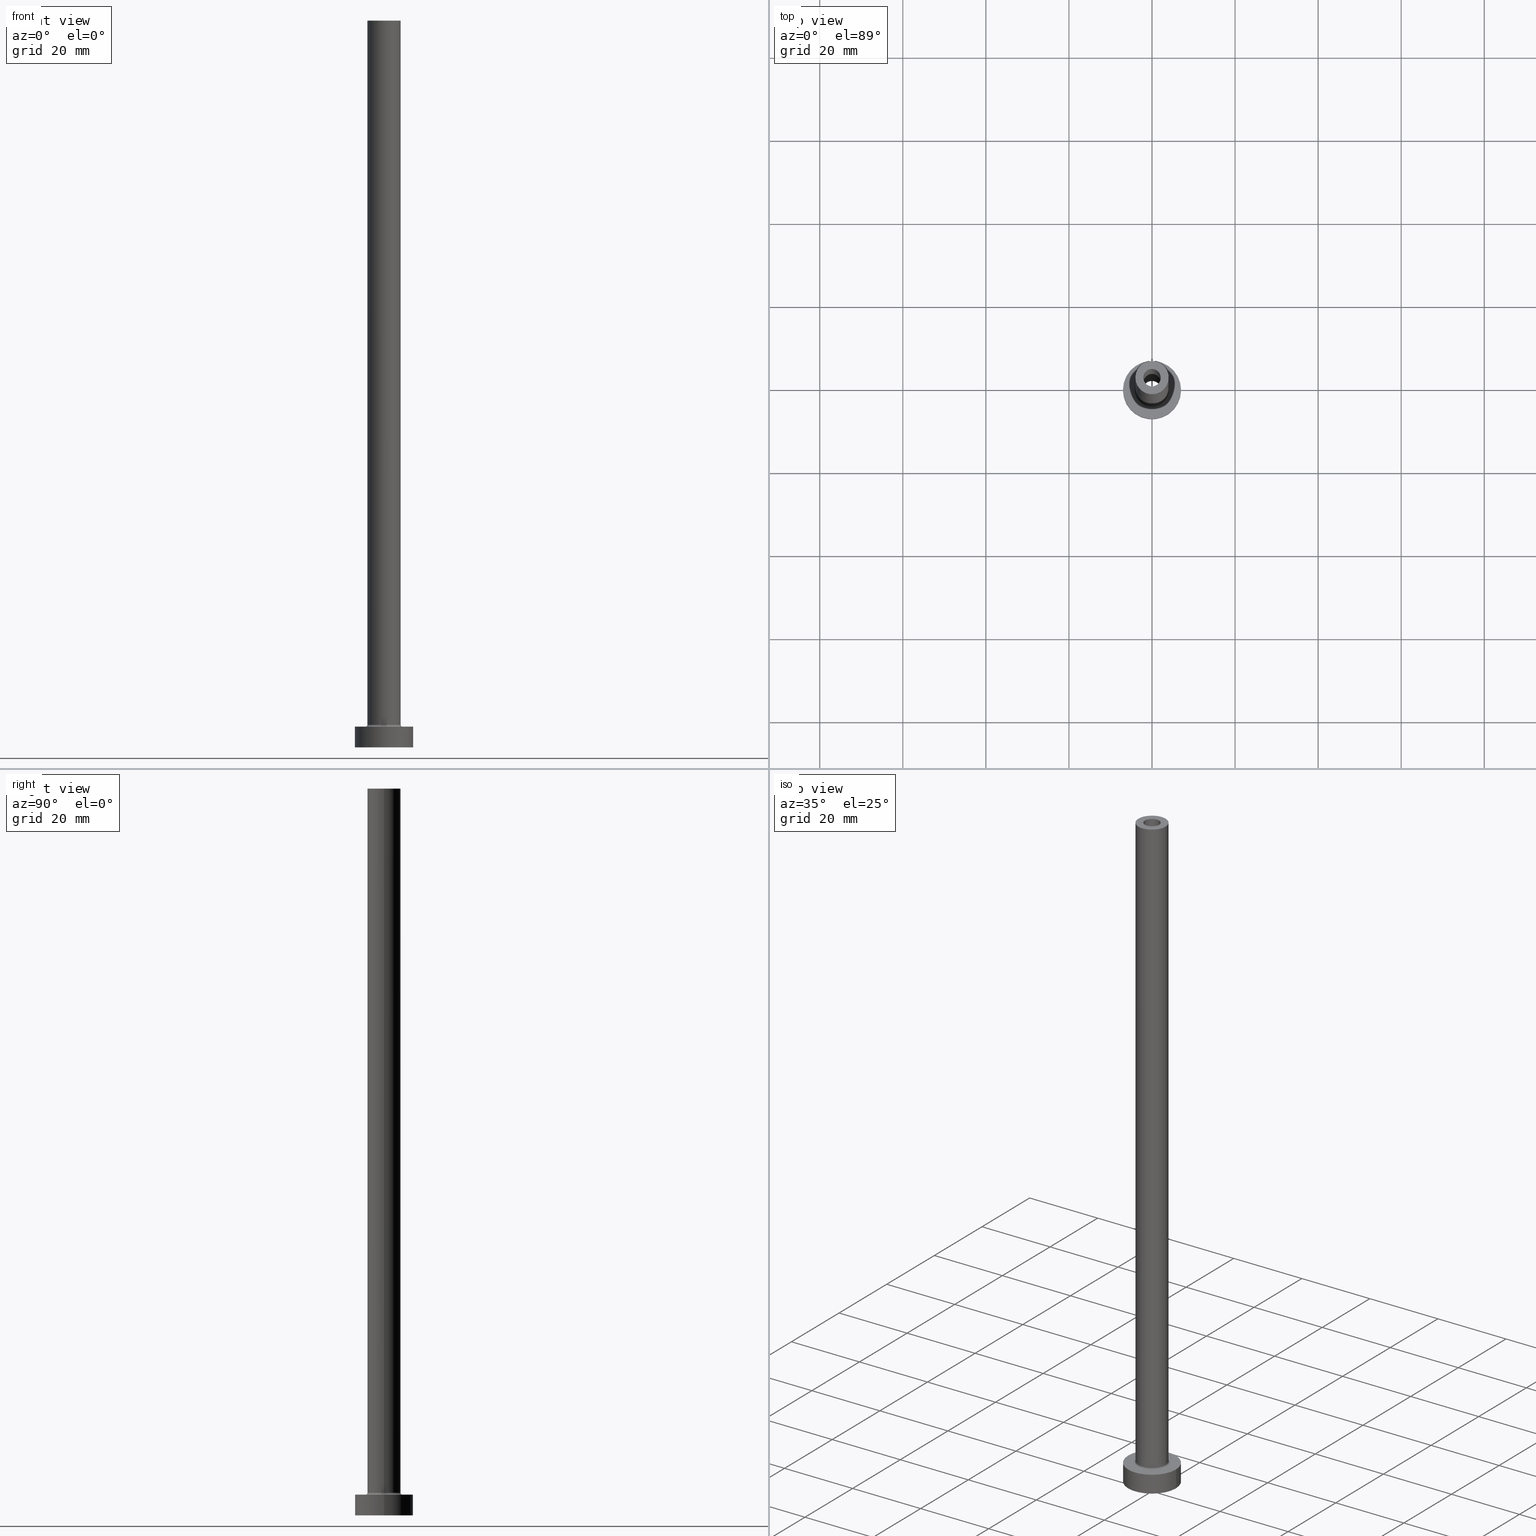
[diagram: canonical four-view strip — front | top / right | iso, engineering-drawing reading convention]
A machine part, canonical four-view strip (front | top / right | iso — engineering-drawing reading convention). The complete STEP part file that produces these views, byte-faithful:
ISO-10303-21;
HEADER;
FILE_DESCRIPTION (( 'STEP AP203' ),
    '1' );
FILE_NAME ('60f4.STEP',
    '2023-02-13T17:32:59',
    ( '' ),
    ( '' ),
    'SwSTEP 2.0',
    'SolidWorks 2019',
    '' );
FILE_SCHEMA (( 'CONFIG_CONTROL_DESIGN' ));
ENDSEC;

DATA;
#1 = DIRECTION ( 'NONE',  ( 0.000000000000000000, 0.000000000000000000, -1.000000000000000000 ) ) ;
#2 = AXIS2_PLACEMENT_3D ( 'NONE', #47, #438, #179 ) ;
#3 = AXIS2_PLACEMENT_3D ( 'NONE', #318, #459, #457 ) ;
#4 = CARTESIAN_POINT ( 'NONE',  ( 0.000000000000000000, 0.000000000000000000, 175.0000000000000284 ) ) ;
#5 = ADVANCED_FACE ( 'NONE', ( #103, #336 ), #140, .T. ) ;
#6 = DIRECTION ( 'NONE',  ( 0.000000000000000000, 0.000000000000000000, 1.000000000000000000 ) ) ;
#7 = DIRECTION ( 'NONE',  ( 0.000000000000000000, 0.000000000000000000, 1.000000000000000000 ) ) ;
#8 = ADVANCED_FACE ( 'NONE', ( #166 ), #437, .T. ) ;
#9 = APPROVAL_ROLE ( '' ) ;
#10 = PERSON_AND_ORGANIZATION ( #310, #143 ) ;
#11 = FACE_OUTER_BOUND ( 'NONE', #132, .T. ) ;
#12 = APPROVAL_ROLE ( '' ) ;
#13 = ADVANCED_FACE ( 'NONE', ( #110 ), #444, .F. ) ;
#14 = PERSON_AND_ORGANIZATION ( #310, #143 ) ;
#15 = CYLINDRICAL_SURFACE ( 'NONE', #94, 2.250000000000000000 ) ;
#16 = CARTESIAN_POINT ( 'NONE',  ( 0.000000000000000000, 0.000000000000000000, 5.500000000000005329 ) ) ;
#17 = ORIENTED_EDGE ( 'NONE', *, *, #380, .T. ) ;
#18 = CYLINDRICAL_SURFACE ( 'NONE', #185, 2.100000000000000089 ) ;
#19 = DIRECTION ( 'NONE',  ( 1.000000000000000000, 0.000000000000000000, 0.000000000000000000 ) ) ;
#20 = TOROIDAL_SURFACE ( 'NONE', #124, 4.500000000000000888, 0.5000000000000000000 ) ;
#21 = DIRECTION ( 'NONE',  ( 0.000000000000000000, 0.000000000000000000, 1.000000000000000000 ) ) ;
#22 = VECTOR ( 'NONE', #432, 1000.000000000000000 ) ;
#23 = DIRECTION ( 'NONE',  ( 0.000000000000000000, 0.000000000000000000, -1.000000000000000000 ) ) ;
#24 = EDGE_LOOP ( 'NONE', ( #204, #349, #382, #399 ) ) ;
#25 = DIRECTION ( 'NONE',  ( 1.000000000000000000, 0.000000000000000000, 0.000000000000000000 ) ) ;
#26 = CARTESIAN_POINT ( 'NONE',  ( -4.500000000000000888, 5.510910596163089556E-16, 5.500000000000005329 ) ) ;
#27 = DIRECTION ( 'NONE',  ( 0.000000000000000000, 0.000000000000000000, -1.000000000000000000 ) ) ;
#28 = ORIENTED_EDGE ( 'NONE', *, *, #346, .T. ) ;
#29 = ADVANCED_BREP_SHAPE_REPRESENTATION ( '60f4', ( #230, #219 ), #423 ) ;
#30 = FACE_OUTER_BOUND ( 'NONE', #159, .T. ) ;
#31 = CC_DESIGN_APPROVAL ( #286, ( #206 ) ) ;
#32 = DIRECTION ( 'NONE',  ( 1.000000000000000000, 0.000000000000000000, 0.000000000000000000 ) ) ;
#33 = ORIENTED_EDGE ( 'NONE', *, *, #136, .F. ) ;
#34 = CARTESIAN_POINT ( 'NONE',  ( 0.000000000000000000, 0.000000000000000000, 136.3639610306789507 ) ) ;
#35 = ORIENTED_EDGE ( 'NONE', *, *, #249, .F. ) ;
#36 = ORIENTED_EDGE ( 'NONE', *, *, #205, .T. ) ;
#37 = EDGE_LOOP ( 'NONE', ( #419, #209 ) ) ;
#38 = EDGE_LOOP ( 'NONE', ( #154, #186 ) ) ;
#39 = CIRCLE ( 'NONE', #65, 2.100000000000000089 ) ;
#40 = AXIS2_PLACEMENT_3D ( 'NONE', #208, #353, #460 ) ;
#41 = EDGE_CURVE ( 'NONE', #418, #311, #285, .T. ) ;
#42 = CARTESIAN_POINT ( 'NONE',  ( 0.000000000000000000, 0.000000000000000000, 175.0000000000000284 ) ) ;
#43 = CYLINDRICAL_SURFACE ( 'NONE', #199, 4.000000000000000000 ) ;
#44 = CARTESIAN_POINT ( 'NONE',  ( -7.000000000000000000, 0.000000000000000000, 5.000000000000000000 ) ) ;
#45 = AXIS2_PLACEMENT_3D ( 'NONE', #76, #319, #227 ) ;
#46 = CIRCLE ( 'NONE', #343, 4.500000000000000888 ) ;
#47 = CARTESIAN_POINT ( 'NONE',  ( 0.000000000000000000, 0.000000000000000000, 5.500000000000005329 ) ) ;
#48 = ADVANCED_FACE ( 'NONE', ( #193 ), #20, .F. ) ;
#49 = DIRECTION ( 'NONE',  ( 1.000000000000000000, 0.000000000000000000, 0.000000000000000000 ) ) ;
#50 = APPROVAL_DATE_TIME ( #312, #203 ) ;
#51 = CARTESIAN_POINT ( 'NONE',  ( 0.000000000000000000, 0.000000000000000000, 0.000000000000000000 ) ) ;
#52 = DATE_AND_TIME ( #79, #345 ) ;
#53 = CIRCLE ( 'NONE', #320, 4.000000000000000000 ) ;
#54 = DIRECTION ( 'NONE',  ( -0.000000000000000000, -0.000000000000000000, -1.000000000000000000 ) ) ;
#55 = DESIGN_CONTEXT ( 'detailed design', #101, 'design' ) ;
#56 = PLANE ( 'NONE',  #369 ) ;
#57 = ORIENTED_EDGE ( 'NONE', *, *, #141, .F. ) ;
#58 = AXIS2_PLACEMENT_3D ( 'NONE', #283, #239, #187 ) ;
#59 = ORIENTED_EDGE ( 'NONE', *, *, #176, .F. ) ;
#60 = AXIS2_PLACEMENT_3D ( 'NONE', #4, #216, #129 ) ;
#61 = CARTESIAN_POINT ( 'NONE',  ( 4.000000000000000000, 4.898587196589412829E-16, 175.0000000000000284 ) ) ;
#62 = CARTESIAN_POINT ( 'NONE',  ( 0.000000000000000000, 0.000000000000000000, 0.000000000000000000 ) ) ;
#63 = AXIS2_PLACEMENT_3D ( 'NONE', #243, #217, #361 ) ;
#64 = ORIENTED_EDGE ( 'NONE', *, *, #305, .T. ) ;
#65 = AXIS2_PLACEMENT_3D ( 'NONE', #88, #251, #32 ) ;
#66 = LOCAL_TIME ( 18, 32, 59.00000000000000000, #410 ) ;
#67 =( LENGTH_UNIT ( ) NAMED_UNIT ( * ) SI_UNIT ( .MILLI., .METRE. ) );
#68 = ORIENTED_EDGE ( 'NONE', *, *, #331, .F. ) ;
#69 = PLANE ( 'NONE',  #256 ) ;
#70 = DIRECTION ( 'NONE',  ( -1.000000000000000000, 0.000000000000000000, 0.000000000000000000 ) ) ;
#71 = CARTESIAN_POINT ( 'NONE',  ( 0.000000000000000000, 0.000000000000000000, 0.000000000000000000 ) ) ;
#72 = DIRECTION ( 'NONE',  ( 1.000000000000000000, 0.000000000000000000, 0.000000000000000000 ) ) ;
#73 = CC_DESIGN_DATE_AND_TIME_ASSIGNMENT ( #75, #152, ( #374 ) ) ;
#74 = DIRECTION ( 'NONE',  ( -1.000000000000000000, 0.000000000000000000, 0.000000000000000000 ) ) ;
#75 = DATE_AND_TIME ( #180, #274 ) ;
#76 = CARTESIAN_POINT ( 'NONE',  ( 0.000000000000000000, 0.000000000000000000, 5.500000000000005329 ) ) ;
#77 = AXIS2_PLACEMENT_3D ( 'NONE', #433, #401, #178 ) ;
#78 = PERSON_AND_ORGANIZATION_ROLE ( 'creator' ) ;
#79 = CALENDAR_DATE ( 2023, 13, 2 ) ;
#80 = DIRECTION ( 'NONE',  ( 0.000000000000000000, 0.000000000000000000, 1.000000000000000000 ) ) ;
#81 = CARTESIAN_POINT ( 'NONE',  ( -2.100000000000000089, 0.000000000000000000, 175.0000000000000284 ) ) ;
#82 = APPLICATION_CONTEXT ( 'configuration controlled 3d designs of mechanical parts and assemblies' ) ;
#83 = CARTESIAN_POINT ( 'NONE',  ( 4.500000000000000888, 0.000000000000000000, 5.000000000000002665 ) ) ;
#84 = DIRECTION ( 'NONE',  ( -1.000000000000000000, 0.000000000000000000, 0.000000000000000000 ) ) ;
#85 = CARTESIAN_POINT ( 'NONE',  ( -2.250000000000000000, 0.000000000000000000, 130.0000000000000000 ) ) ;
#86 = AXIS2_PLACEMENT_3D ( 'NONE', #302, #1, #389 ) ;
#87 = EDGE_LOOP ( 'NONE', ( #289, #59 ) ) ;
#88 = CARTESIAN_POINT ( 'NONE',  ( 0.000000000000000000, 0.000000000000000000, 175.0000000000000284 ) ) ;
#89 = CARTESIAN_POINT ( 'NONE',  ( 0.000000000000000000, 0.000000000000000000, 5.000000000000000000 ) ) ;
#90 = DIRECTION ( 'NONE',  ( 1.000000000000000000, 0.000000000000000000, 0.000000000000000000 ) ) ;
#91 = ADVANCED_FACE ( 'NONE', ( #408 ), #373, .F. ) ;
#92 = DIRECTION ( 'NONE',  ( -0.000000000000000000, -0.000000000000000000, -1.000000000000000000 ) ) ;
#93 = AXIS2_PLACEMENT_3D ( 'NONE', #195, #120, #280 ) ;
#94 = AXIS2_PLACEMENT_3D ( 'NONE', #34, #211, #424 ) ;
#95 = ORIENTED_EDGE ( 'NONE', *, *, #359, .F. ) ;
#96 = EDGE_CURVE ( 'NONE', #293, #450, #244, .T. ) ;
#97 = ORIENTED_EDGE ( 'NONE', *, *, #96, .F. ) ;
#98 = FACE_OUTER_BOUND ( 'NONE', #262, .T. ) ;
#99 = ORIENTED_EDGE ( 'NONE', *, *, #161, .T. ) ;
#100 = AXIS2_PLACEMENT_3D ( 'NONE', #246, #381, #452 ) ;
#101 = APPLICATION_CONTEXT ( 'configuration controlled 3d designs of mechanical parts and assemblies' ) ;
#102 = AXIS2_PLACEMENT_3D ( 'NONE', #297, #426, #214 ) ;
#103 = FACE_BOUND ( 'NONE', #263, .T. ) ;
#104 = PERSON_AND_ORGANIZATION ( #310, #143 ) ;
#105 = PRODUCT_RELATED_PRODUCT_CATEGORY ( 'detail', '', ( #157 ) ) ;
#106 = CARTESIAN_POINT ( 'NONE',  ( 0.000000000000000000, 0.000000000000000000, 175.0000000000000284 ) ) ;
#107 = CARTESIAN_POINT ( 'NONE',  ( 7.000000000000000000, 8.572527594031473190E-16, 0.000000000000000000 ) ) ;
#108 = PERSON_AND_ORGANIZATION_ROLE ( 'classification_officer' ) ;
#109 = DATE_AND_TIME ( #375, #339 ) ;
#110 = FACE_OUTER_BOUND ( 'NONE', #240, .T. ) ;
#111 = SECURITY_CLASSIFICATION_LEVEL ( 'unclassified' ) ;
#112 = DIRECTION ( 'NONE',  ( 0.000000000000000000, 0.000000000000000000, 1.000000000000000000 ) ) ;
#113 = EDGE_CURVE ( 'NONE', #316, #202, #182, .T. ) ;
#114 = LINE ( 'NONE', #232, #115 ) ;
#115 = VECTOR ( 'NONE', #54, 1000.000000000000000 ) ;
#116 = SECURITY_CLASSIFICATION ( '', '', #111 ) ;
#117 = CARTESIAN_POINT ( 'NONE',  ( 0.000000000000000000, 0.000000000000000000, 5.000000000000000000 ) ) ;
#118 = CARTESIAN_POINT ( 'NONE',  ( 0.000000000000000000, 0.000000000000000000, 175.0000000000000284 ) ) ;
#119 = DIRECTION ( 'NONE',  ( 1.000000000000000000, 0.000000000000000000, 0.000000000000000000 ) ) ;
#120 = DIRECTION ( 'NONE',  ( -0.000000000000000000, -0.000000000000000000, -1.000000000000000000 ) ) ;
#121 = ORIENTED_EDGE ( 'NONE', *, *, #123, .T. ) ;
#122 = CARTESIAN_POINT ( 'NONE',  ( 0.000000000000000000, 0.000000000000000000, 0.000000000000000000 ) ) ;
#123 = EDGE_CURVE ( 'NONE', #360, #293, #329, .T. ) ;
#124 = AXIS2_PLACEMENT_3D ( 'NONE', #377, #80, #19 ) ;
#125 = ORIENTED_EDGE ( 'NONE', *, *, #136, .T. ) ;
#126 = AXIS2_PLACEMENT_3D ( 'NONE', #16, #112, #436 ) ;
#127 = ORIENTED_EDGE ( 'NONE', *, *, #398, .T. ) ;
#128 = CARTESIAN_POINT ( 'NONE',  ( -2.100000000000000089, 0.000000000000000000, 175.0000000000000284 ) ) ;
#129 = DIRECTION ( 'NONE',  ( 1.000000000000000000, 0.000000000000000000, 0.000000000000000000 ) ) ;
#130 = ORIENTED_EDGE ( 'NONE', *, *, #456, .F. ) ;
#131 = DIRECTION ( 'NONE',  ( 1.000000000000000000, 0.000000000000000000, -0.000000000000000000 ) ) ;
#132 = EDGE_LOOP ( 'NONE', ( #130, #323, #378, #36 ) ) ;
#133 = CC_DESIGN_APPROVAL ( #203, ( #116 ) ) ;
#134 = LINE ( 'NONE', #162, #412 ) ;
#135 = CARTESIAN_POINT ( 'NONE',  ( -7.000000000000000000, 0.000000000000000000, 0.000000000000000000 ) ) ;
#136 = EDGE_CURVE ( 'NONE', #213, #311, #384, .T. ) ;
#137 = VERTEX_POINT ( 'NONE', #85 ) ;
#138 = ORIENTED_EDGE ( 'NONE', *, *, #346, .F. ) ;
#139 = ORIENTED_EDGE ( 'NONE', *, *, #123, .F. ) ;
#140 = PLANE ( 'NONE',  #351 ) ;
#141 = EDGE_CURVE ( 'NONE', #213, #167, #317, .T. ) ;
#142 = CALENDAR_DATE ( 2023, 13, 2 ) ;
#143 = ORGANIZATION ( 'NEUR�EN�', 'NEUR�EN�', '' ) ;
#144 = DATE_TIME_ROLE ( 'classification_date' ) ;
#145 = ORIENTED_EDGE ( 'NONE', *, *, #397, .F. ) ;
#146 = ORIENTED_EDGE ( 'NONE', *, *, #188, .F. ) ;
#147 = CLOSED_SHELL ( 'NONE', ( #325, #91, #48, #282, #276, #392, #5, #427, #8, #189, #13, #352, #271, #348 ) ) ;
#148 = APPROVAL_DATE_TIME ( #109, #286 ) ;
#149 = CC_DESIGN_APPROVAL ( #171, ( #374 ) ) ;
#150 = FACE_OUTER_BOUND ( 'NONE', #332, .T. ) ;
#151 = CC_DESIGN_PERSON_AND_ORGANIZATION_ASSIGNMENT ( #307, #314, ( #374 ) ) ;
#152 = DATE_TIME_ROLE ( 'creation_date' ) ;
#153 = CARTESIAN_POINT ( 'NONE',  ( -4.500000000000000888, 5.510910596163088569E-16, 5.000000000000002665 ) ) ;
#154 = ORIENTED_EDGE ( 'NONE', *, *, #249, .T. ) ;
#155 = CARTESIAN_POINT ( 'NONE',  ( 0.000000000000000000, 0.000000000000000000, 130.0000000000000000 ) ) ;
#156 = ORIENTED_EDGE ( 'NONE', *, *, #275, .T. ) ;
#157 = PRODUCT ( '60f4', '60f4', '', ( #270 ) ) ;
#158 = DIRECTION ( 'NONE',  ( 0.000000000000000000, 0.000000000000000000, 1.000000000000000000 ) ) ;
#159 = EDGE_LOOP ( 'NONE', ( #394, #121, #383, #191 ) ) ;
#160 = CIRCLE ( 'NONE', #3, 2.100000000000000089 ) ;
#161 = EDGE_CURVE ( 'NONE', #254, #450, #291, .T. ) ;
#162 = CARTESIAN_POINT ( 'NONE',  ( -2.250000000000000000, 0.000000000000000000, 136.3639610306789507 ) ) ;
#163 = FACE_OUTER_BOUND ( 'NONE', #87, .T. ) ;
#164 = CC_DESIGN_DATE_AND_TIME_ASSIGNMENT ( #231, #144, ( #116 ) ) ;
#165 = CARTESIAN_POINT ( 'NONE',  ( 4.000000000000000000, 4.898587196589412829E-16, 175.0000000000000284 ) ) ;
#166 = FACE_OUTER_BOUND ( 'NONE', #225, .T. ) ;
#167 = VERTEX_POINT ( 'NONE', #200 ) ;
#168 = ORIENTED_EDGE ( 'NONE', *, *, #455, .F. ) ;
#169 = CARTESIAN_POINT ( 'NONE',  ( -4.000000000000000000, 0.000000000000000000, 5.500000000000005329 ) ) ;
#170 = EDGE_LOOP ( 'NONE', ( #139, #431, #99, #97 ) ) ;
#171 = APPROVAL ( #407, 'NEUR�EN�' ) ;
#172 = DIRECTION ( 'NONE',  ( -0.000000000000000000, -0.000000000000000000, -1.000000000000000000 ) ) ;
#173 = COORDINATED_UNIVERSAL_TIME_OFFSET ( 1, 0, .AHEAD. ) ;
#174 = AXIS2_PLACEMENT_3D ( 'NONE', #184, #445, #84 ) ;
#175 = FACE_OUTER_BOUND ( 'NONE', #324, .T. ) ;
#176 = EDGE_CURVE ( 'NONE', #311, #418, #411, .T. ) ;
#177 = APPROVAL_PERSON_ORGANIZATION ( #104, #203, #9 ) ;
#178 = DIRECTION ( 'NONE',  ( 1.000000000000000000, 0.000000000000000000, 0.000000000000000000 ) ) ;
#179 = DIRECTION ( 'NONE',  ( 1.000000000000000000, 0.000000000000000000, 0.000000000000000000 ) ) ;
#180 = CALENDAR_DATE ( 2023, 13, 2 ) ;
#181 = CARTESIAN_POINT ( 'NONE',  ( -4.000000000000000000, 0.000000000000000000, 175.0000000000000284 ) ) ;
#182 = CIRCLE ( 'NONE', #63, 0.5000000000000004441 ) ;
#183 = APPLICATION_PROTOCOL_DEFINITION ( 'international standard', 'config_control_design', 1994, #101 ) ;
#184 = CARTESIAN_POINT ( 'NONE',  ( 0.000000000000000000, 0.000000000000000000, 136.3639610306789507 ) ) ;
#185 = AXIS2_PLACEMENT_3D ( 'NONE', #118, #23, #328 ) ;
#186 = ORIENTED_EDGE ( 'NONE', *, *, #141, .T. ) ;
#187 = DIRECTION ( 'NONE',  ( 1.000000000000000000, 0.000000000000000000, 0.000000000000000000 ) ) ;
#188 = EDGE_CURVE ( 'NONE', #254, #360, #39, .T. ) ;
#189 = ADVANCED_FACE ( 'NONE', ( #326, #420 ), #451, .T. ) ;
#190 = DIRECTION ( 'NONE',  ( -0.000000000000000000, -0.000000000000000000, -1.000000000000000000 ) ) ;
#191 = ORIENTED_EDGE ( 'NONE', *, *, #161, .F. ) ;
#192 = CC_DESIGN_PERSON_AND_ORGANIZATION_ASSIGNMENT ( #278, #78, ( #206 ) ) ;
#193 = FACE_OUTER_BOUND ( 'NONE', #24, .T. ) ;
#194 = ORIENTED_EDGE ( 'NONE', *, *, #205, .F. ) ;
#195 = CARTESIAN_POINT ( 'NONE',  ( 0.000000000000000000, 0.000000000000000000, 0.000000000000000000 ) ) ;
#196 = AXIS2_PLACEMENT_3D ( 'NONE', #51, #238, #49 ) ;
#197 = DIRECTION ( 'NONE',  ( 1.000000000000000000, 0.000000000000000000, 0.000000000000000000 ) ) ;
#198 = ORIENTED_EDGE ( 'NONE', *, *, #350, .F. ) ;
#199 = AXIS2_PLACEMENT_3D ( 'NONE', #42, #172, #74 ) ;
#200 = CARTESIAN_POINT ( 'NONE',  ( -7.000000000000000000, 0.000000000000000000, 5.000000000000000000 ) ) ;
#201 = DIRECTION ( 'NONE',  ( -1.000000000000000000, 0.000000000000000000, 0.000000000000000000 ) ) ;
#202 = VERTEX_POINT ( 'NONE', #83 ) ;
#203 = APPROVAL ( #406, 'NEUR�EN�' ) ;
#204 = ORIENTED_EDGE ( 'NONE', *, *, #305, .F. ) ;
#205 = EDGE_CURVE ( 'NONE', #441, #334, #338, .T. ) ;
#206 = PRODUCT_DEFINITION_FORMATION_WITH_SPECIFIED_SOURCE ( 'LIBOVOLN�', '', #157, .NOT_KNOWN. ) ;
#207 = DIRECTION ( 'NONE',  ( 0.000000000000000000, 0.000000000000000000, 1.000000000000000000 ) ) ;
#208 = CARTESIAN_POINT ( 'NONE',  ( 0.000000000000000000, 0.000000000000000000, 5.000000000000000000 ) ) ;
#209 = ORIENTED_EDGE ( 'NONE', *, *, #96, .T. ) ;
#210 = CC_DESIGN_PERSON_AND_ORGANIZATION_ASSIGNMENT ( #439, #277, ( #157 ) ) ;
#211 = DIRECTION ( 'NONE',  ( 0.000000000000000000, 0.000000000000000000, -1.000000000000000000 ) ) ;
#212 = CARTESIAN_POINT ( 'NONE',  ( 0.000000000000000000, 0.000000000000000000, 5.000000000000000000 ) ) ;
#213 = VERTEX_POINT ( 'NONE', #379 ) ;
#214 = DIRECTION ( 'NONE',  ( 1.000000000000000000, 0.000000000000000000, 0.000000000000000000 ) ) ;
#215 = DIRECTION ( 'NONE',  ( 1.000000000000000000, 0.000000000000000000, 0.000000000000000000 ) ) ;
#216 = DIRECTION ( 'NONE',  ( 0.000000000000000000, 0.000000000000000000, 1.000000000000000000 ) ) ;
#217 = DIRECTION ( 'NONE',  ( 0.000000000000000000, -1.000000000000000000, 0.000000000000000000 ) ) ;
#218 = AXIS2_PLACEMENT_3D ( 'NONE', #365, #341, #70 ) ;
#219 = AXIS2_PLACEMENT_3D ( 'NONE', #71, #6, #90 ) ;
#220 = VERTEX_POINT ( 'NONE', #153 ) ;
#221 = ORIENTED_EDGE ( 'NONE', *, *, #261, .T. ) ;
#222 = CARTESIAN_POINT ( 'NONE',  ( 2.250000000000000000, 2.755455298081544285E-16, 136.3639610306789507 ) ) ;
#223 = APPROVAL_STATUS ( 'not_yet_approved' ) ;
#224 = SHAPE_DEFINITION_REPRESENTATION ( #327, #29 ) ;
#225 = EDGE_LOOP ( 'NONE', ( #368, #95, #356, #64 ) ) ;
#226 = AXIS2_PLACEMENT_3D ( 'NONE', #26, #454, #287 ) ;
#227 = DIRECTION ( 'NONE',  ( 1.000000000000000000, 0.000000000000000000, 0.000000000000000000 ) ) ;
#228 = ORIENTED_EDGE ( 'NONE', *, *, #41, .T. ) ;
#229 = APPLICATION_PROTOCOL_DEFINITION ( 'international standard', 'config_control_design', 1994, #82 ) ;
#230 = MANIFOLD_SOLID_BREP ( 'Odebrat vysunut�m4', #147 ) ;
#231 = DATE_AND_TIME ( #273, #66 ) ;
#232 = CARTESIAN_POINT ( 'NONE',  ( -4.000000000000000000, 0.000000000000000000, 175.0000000000000284 ) ) ;
#233 = PERSON_AND_ORGANIZATION ( #310, #143 ) ;
#234 = DIRECTION ( 'NONE',  ( -1.000000000000000000, 0.000000000000000000, 0.000000000000000000 ) ) ;
#235 = VECTOR ( 'NONE', #284, 1000.000000000000000 ) ;
#236 =( NAMED_UNIT ( * ) SI_UNIT ( $, .STERADIAN. ) SOLID_ANGLE_UNIT ( ) );
#237 = VECTOR ( 'NONE', #268, 1000.000000000000000 ) ;
#238 = DIRECTION ( 'NONE',  ( 0.000000000000000000, 0.000000000000000000, 1.000000000000000000 ) ) ;
#239 = DIRECTION ( 'NONE',  ( 0.000000000000000000, 0.000000000000000000, 1.000000000000000000 ) ) ;
#240 = EDGE_LOOP ( 'NONE', ( #145, #247, #440, #366 ) ) ;
#241 = EDGE_CURVE ( 'NONE', #405, #301, #114, .T. ) ;
#242 = DIRECTION ( 'NONE',  ( -0.000000000000000000, -0.000000000000000000, -1.000000000000000000 ) ) ;
#243 = CARTESIAN_POINT ( 'NONE',  ( 4.500000000000000888, 0.000000000000000000, 5.500000000000005329 ) ) ;
#244 = CIRCLE ( 'NONE', #396, 2.100000000000000089 ) ;
#245 = CIRCLE ( 'NONE', #126, 4.000000000000000000 ) ;
#246 = CARTESIAN_POINT ( 'NONE',  ( 0.000000000000000000, 0.000000000000000000, 175.0000000000000284 ) ) ;
#247 = ORIENTED_EDGE ( 'NONE', *, *, #275, .F. ) ;
#248 = LINE ( 'NONE', #61, #417 ) ;
#249 = EDGE_CURVE ( 'NONE', #167, #213, #447, .T. ) ;
#250 = ORIENTED_EDGE ( 'NONE', *, *, #176, .T. ) ;
#251 = DIRECTION ( 'NONE',  ( 0.000000000000000000, 0.000000000000000000, 1.000000000000000000 ) ) ;
#252 = FACE_OUTER_BOUND ( 'NONE', #257, .T. ) ;
#253 = VECTOR ( 'NONE', #385, 1000.000000000000000 ) ;
#254 = VERTEX_POINT ( 'NONE', #81 ) ;
#255 = CIRCLE ( 'NONE', #93, 2.250000000000000000 ) ;
#256 = AXIS2_PLACEMENT_3D ( 'NONE', #333, #461, #131 ) ;
#257 = EDGE_LOOP ( 'NONE', ( #33, #35, #453, #228 ) ) ;
#258 = CARTESIAN_POINT ( 'NONE',  ( 2.250000000000000000, 2.755455298081544285E-16, 0.000000000000000000 ) ) ;
#259 = ORIENTED_EDGE ( 'NONE', *, *, #359, .T. ) ;
#260 = CARTESIAN_POINT ( 'NONE',  ( 0.000000000000000000, 0.000000000000000000, 175.0000000000000284 ) ) ;
#261 = EDGE_CURVE ( 'NONE', #334, #441, #255, .T. ) ;
#262 = EDGE_LOOP ( 'NONE', ( #57, #125, #250, #290 ) ) ;
#263 = EDGE_LOOP ( 'NONE', ( #429, #17 ) ) ;
#264 = AXIS2_PLACEMENT_3D ( 'NONE', #300, #7, #72 ) ;
#265 = DIRECTION ( 'NONE',  ( 0.000000000000000000, 0.000000000000000000, 1.000000000000000000 ) ) ;
#266 = COORDINATED_UNIVERSAL_TIME_OFFSET ( 1, 0, .AHEAD. ) ;
#267 = LINE ( 'NONE', #222, #237 ) ;
#268 = DIRECTION ( 'NONE',  ( 0.000000000000000000, 0.000000000000000000, -1.000000000000000000 ) ) ;
#269 = DIRECTION ( 'NONE',  ( 0.000000000000000000, 0.000000000000000000, 1.000000000000000000 ) ) ;
#270 = MECHANICAL_CONTEXT ( 'NONE', #82, 'mechanical' ) ;
#271 = ADVANCED_FACE ( 'NONE', ( #442, #150 ), #56, .F. ) ;
#272 = CARTESIAN_POINT ( 'NONE',  ( 4.000000000000000000, 4.898587196589412829E-16, 5.500000000000005329 ) ) ;
#273 = CALENDAR_DATE ( 2023, 13, 2 ) ;
#274 = LOCAL_TIME ( 18, 32, 59.00000000000000000, #443 ) ;
#275 = EDGE_CURVE ( 'NONE', #316, #301, #245, .T. ) ;
#276 = ADVANCED_FACE ( 'NONE', ( #98 ), #367, .T. ) ;
#277 = PERSON_AND_ORGANIZATION_ROLE ( 'design_owner' ) ;
#278 = PERSON_AND_ORGANIZATION ( #310, #143 ) ;
#279 = EDGE_CURVE ( 'NONE', #167, #418, #363, .T. ) ;
#280 = DIRECTION ( 'NONE',  ( 1.000000000000000000, 0.000000000000000000, 0.000000000000000000 ) ) ;
#281 = LOCAL_TIME ( 18, 32, 59.00000000000000000, #173 ) ;
#282 = ADVANCED_FACE ( 'NONE', ( #175 ), #43, .T. ) ;
#283 = CARTESIAN_POINT ( 'NONE',  ( 0.000000000000000000, 0.000000000000000000, 5.000000000000000000 ) ) ;
#284 = DIRECTION ( 'NONE',  ( 0.000000000000000000, 0.000000000000000000, -1.000000000000000000 ) ) ;
#285 = CIRCLE ( 'NONE', #196, 7.000000000000000000 ) ;
#286 = APPROVAL ( #223, 'NEUR�EN�' ) ;
#287 = DIRECTION ( 'NONE',  ( -1.000000000000000000, 1.224646799147351482E-16, 0.000000000000000000 ) ) ;
#288 = CARTESIAN_POINT ( 'NONE',  ( 2.100000000000000089, 2.571758278209441957E-16, 175.0000000000000284 ) ) ;
#289 = ORIENTED_EDGE ( 'NONE', *, *, #41, .F. ) ;
#290 = ORIENTED_EDGE ( 'NONE', *, *, #279, .F. ) ;
#291 = LINE ( 'NONE', #128, #235 ) ;
#292 = CARTESIAN_POINT ( 'NONE',  ( 2.250000000000000000, 2.755455298081544285E-16, 130.0000000000000000 ) ) ;
#293 = VERTEX_POINT ( 'NONE', #370 ) ;
#294 = CYLINDRICAL_SURFACE ( 'NONE', #86, 2.100000000000000089 ) ;
#295 = AXIS2_PLACEMENT_3D ( 'NONE', #414, #158, #119 ) ;
#296 = CIRCLE ( 'NONE', #2, 4.000000000000000000 ) ;
#297 = CARTESIAN_POINT ( 'NONE',  ( 0.000000000000000000, 0.000000000000000000, 175.0000000000000284 ) ) ;
#298 = CIRCLE ( 'NONE', #102, 2.100000000000000089 ) ;
#299 = DIRECTION ( 'NONE',  ( 0.000000000000000000, 0.000000000000000000, -1.000000000000000000 ) ) ;
#300 = CARTESIAN_POINT ( 'NONE',  ( 0.000000000000000000, 0.000000000000000000, 130.0000000000000000 ) ) ;
#301 = VERTEX_POINT ( 'NONE', #169 ) ;
#302 = CARTESIAN_POINT ( 'NONE',  ( 0.000000000000000000, 0.000000000000000000, 175.0000000000000284 ) ) ;
#303 =( NAMED_UNIT ( * ) PLANE_ANGLE_UNIT ( ) SI_UNIT ( $, .RADIAN. ) );
#304 = ORIENTED_EDGE ( 'NONE', *, *, #456, .T. ) ;
#305 = EDGE_CURVE ( 'NONE', #301, #316, #296, .T. ) ;
#306 = EDGE_LOOP ( 'NONE', ( #259, #28 ) ) ;
#307 = PERSON_AND_ORGANIZATION ( #310, #143 ) ;
#308 = DIRECTION ( 'NONE',  ( 1.000000000000000000, 0.000000000000000000, -0.000000000000000000 ) ) ;
#309 = PERSON_AND_ORGANIZATION_ROLE ( 'design_supplier' ) ;
#310 = PERSON ( 'NEUR�EN�', 'NEUR�EN�', 'NEUR�EN�', ('NEUR�EN�'), ('NEUR�EN�'), ('NEUR�EN�') ) ;
#311 = VERTEX_POINT ( 'NONE', #107 ) ;
#312 = DATE_AND_TIME ( #142, #281 ) ;
#313 = CARTESIAN_POINT ( 'NONE',  ( 0.000000000000000000, 0.000000000000000000, 130.0000000000000000 ) ) ;
#314 = PERSON_AND_ORGANIZATION_ROLE ( 'creator' ) ;
#315 = DIRECTION ( 'NONE',  ( 1.000000000000000000, 0.000000000000000000, -0.000000000000000000 ) ) ;
#316 = VERTEX_POINT ( 'NONE', #272 ) ;
#317 = CIRCLE ( 'NONE', #295, 7.000000000000000000 ) ;
#318 = CARTESIAN_POINT ( 'NONE',  ( 0.000000000000000000, 0.000000000000000000, 130.0000000000000000 ) ) ;
#319 = DIRECTION ( 'NONE',  ( 0.000000000000000000, 0.000000000000000000, 1.000000000000000000 ) ) ;
#320 = AXIS2_PLACEMENT_3D ( 'NONE', #260, #207, #197 ) ;
#321 = CARTESIAN_POINT ( 'NONE',  ( 7.000000000000000000, 8.572527594031473190E-16, 5.000000000000000000 ) ) ;
#322 = DIRECTION ( 'NONE',  ( 1.000000000000000000, 0.000000000000000000, 0.000000000000000000 ) ) ;
#323 = ORIENTED_EDGE ( 'NONE', *, *, #455, .T. ) ;
#324 = EDGE_LOOP ( 'NONE', ( #138, #127, #156, #358 ) ) ;
#325 = ADVANCED_FACE ( 'NONE', ( #30 ), #294, .F. ) ;
#326 = FACE_BOUND ( 'NONE', #364, .T. ) ;
#327 = PRODUCT_DEFINITION_SHAPE ( 'NONE', 'NONE',  #374 ) ;
#328 = DIRECTION ( 'NONE',  ( -1.000000000000000000, 0.000000000000000000, 0.000000000000000000 ) ) ;
#329 = LINE ( 'NONE', #288, #446 ) ;
#330 = APPROVAL_PERSON_ORGANIZATION ( #372, #286, #340 ) ;
#331 = EDGE_CURVE ( 'NONE', #137, #441, #134, .T. ) ;
#332 = EDGE_LOOP ( 'NONE', ( #198, #168 ) ) ;
#333 = CARTESIAN_POINT ( 'NONE',  ( 0.000000000000000000, 0.000000000000000000, 0.000000000000000000 ) ) ;
#334 = VERTEX_POINT ( 'NONE', #258 ) ;
#335 = UNCERTAINTY_MEASURE_WITH_UNIT (LENGTH_MEASURE( 1.000000000000000082E-05 ), #67, 'distance_accuracy_value', 'NONE');
#336 = FACE_OUTER_BOUND ( 'NONE', #38, .T. ) ;
#337 = ORIENTED_EDGE ( 'NONE', *, *, #430, .F. ) ;
#338 = CIRCLE ( 'NONE', #416, 2.250000000000000000 ) ;
#339 = LOCAL_TIME ( 18, 32, 59.00000000000000000, #266 ) ;
#340 = APPROVAL_ROLE ( '' ) ;
#341 = DIRECTION ( 'NONE',  ( -0.000000000000000000, -0.000000000000000000, -1.000000000000000000 ) ) ;
#342 = AXIS2_PLACEMENT_3D ( 'NONE', #62, #347, #25 ) ;
#343 = AXIS2_PLACEMENT_3D ( 'NONE', #89, #390, #215 ) ;
#344 = EDGE_CURVE ( 'NONE', #202, #220, #46, .T. ) ;
#345 = LOCAL_TIME ( 18, 32, 59.00000000000000000, #435 ) ;
#346 = EDGE_CURVE ( 'NONE', #355, #405, #53, .T. ) ;
#347 = DIRECTION ( 'NONE',  ( 0.000000000000000000, 0.000000000000000000, 1.000000000000000000 ) ) ;
#348 = ADVANCED_FACE ( 'NONE', ( #449 ), #18, .F. ) ;
#349 = ORIENTED_EDGE ( 'NONE', *, *, #397, .T. ) ;
#350 = EDGE_CURVE ( 'NONE', #137, #422, #434, .T. ) ;
#351 = AXIS2_PLACEMENT_3D ( 'NONE', #212, #265, #308 ) ;
#352 = ADVANCED_FACE ( 'NONE', ( #11 ), #15, .F. ) ;
#353 = DIRECTION ( 'NONE',  ( -0.000000000000000000, -0.000000000000000000, -1.000000000000000000 ) ) ;
#354 = FACE_BOUND ( 'NONE', #415, .T. ) ;
#355 = VERTEX_POINT ( 'NONE', #165 ) ;
#356 = ORIENTED_EDGE ( 'NONE', *, *, #241, .T. ) ;
#357 = CARTESIAN_POINT ( 'NONE',  ( -2.250000000000000000, 0.000000000000000000, 0.000000000000000000 ) ) ;
#358 = ORIENTED_EDGE ( 'NONE', *, *, #241, .F. ) ;
#359 = EDGE_CURVE ( 'NONE', #405, #355, #371, .T. ) ;
#360 = VERTEX_POINT ( 'NONE', #387 ) ;
#361 = DIRECTION ( 'NONE',  ( 0.000000000000000000, 0.000000000000000000, -1.000000000000000000 ) ) ;
#362 = CC_DESIGN_SECURITY_CLASSIFICATION ( #116, ( #206 ) ) ;
#363 = LINE ( 'NONE', #44, #22 ) ;
#364 = EDGE_LOOP ( 'NONE', ( #146, #337 ) ) ;
#365 = CARTESIAN_POINT ( 'NONE',  ( 0.000000000000000000, 0.000000000000000000, 5.000000000000000000 ) ) ;
#366 = ORIENTED_EDGE ( 'NONE', *, *, #380, .F. ) ;
#367 = CYLINDRICAL_SURFACE ( 'NONE', #218, 7.000000000000000000 ) ;
#368 = ORIENTED_EDGE ( 'NONE', *, *, #398, .F. ) ;
#369 = AXIS2_PLACEMENT_3D ( 'NONE', #313, #21, #315 ) ;
#370 = CARTESIAN_POINT ( 'NONE',  ( 2.100000000000000089, 2.571758278209441957E-16, 130.0000000000000000 ) ) ;
#371 = CIRCLE ( 'NONE', #60, 4.000000000000000000 ) ;
#372 = PERSON_AND_ORGANIZATION ( #310, #143 ) ;
#373 = CYLINDRICAL_SURFACE ( 'NONE', #174, 2.250000000000000000 ) ;
#374 = PRODUCT_DEFINITION ( 'NEZN�M�', '', #206, #55 ) ;
#375 = CALENDAR_DATE ( 2023, 13, 2 ) ;
#376 = APPROVAL_PERSON_ORGANIZATION ( #233, #171, #12 ) ;
#377 = CARTESIAN_POINT ( 'NONE',  ( 0.000000000000000000, 0.000000000000000000, 5.500000000000005329 ) ) ;
#378 = ORIENTED_EDGE ( 'NONE', *, *, #331, .T. ) ;
#379 = CARTESIAN_POINT ( 'NONE',  ( 7.000000000000000000, 8.572527594031473190E-16, 5.000000000000000000 ) ) ;
#380 = EDGE_CURVE ( 'NONE', #220, #202, #425, .T. ) ;
#381 = DIRECTION ( 'NONE',  ( 0.000000000000000000, 0.000000000000000000, 1.000000000000000000 ) ) ;
#382 = ORIENTED_EDGE ( 'NONE', *, *, #344, .F. ) ;
#383 = ORIENTED_EDGE ( 'NONE', *, *, #386, .F. ) ;
#384 = LINE ( 'NONE', #321, #253 ) ;
#385 = DIRECTION ( 'NONE',  ( -0.000000000000000000, -0.000000000000000000, -1.000000000000000000 ) ) ;
#386 = EDGE_CURVE ( 'NONE', #450, #293, #160, .T. ) ;
#387 = CARTESIAN_POINT ( 'NONE',  ( 2.100000000000000089, 2.571758278209441957E-16, 175.0000000000000284 ) ) ;
#388 = CIRCLE ( 'NONE', #264, 2.250000000000000000 ) ;
#389 = DIRECTION ( 'NONE',  ( -1.000000000000000000, 0.000000000000000000, 0.000000000000000000 ) ) ;
#390 = DIRECTION ( 'NONE',  ( -0.000000000000000000, -0.000000000000000000, -1.000000000000000000 ) ) ;
#391 = CARTESIAN_POINT ( 'NONE',  ( -2.100000000000000089, 0.000000000000000000, 130.0000000000000000 ) ) ;
#392 = ADVANCED_FACE ( 'NONE', ( #252 ), #448, .T. ) ;
#393 = ORIENTED_EDGE ( 'NONE', *, *, #261, .F. ) ;
#394 = ORIENTED_EDGE ( 'NONE', *, *, #188, .T. ) ;
#395 = AXIS2_PLACEMENT_3D ( 'NONE', #106, #190, #234 ) ;
#396 = AXIS2_PLACEMENT_3D ( 'NONE', #155, #269, #404 ) ;
#397 = EDGE_CURVE ( 'NONE', #301, #220, #458, .T. ) ;
#398 = EDGE_CURVE ( 'NONE', #355, #316, #248, .T. ) ;
#399 = ORIENTED_EDGE ( 'NONE', *, *, #113, .F. ) ;
#400 = AXIS2_PLACEMENT_3D ( 'NONE', #117, #242, #201 ) ;
#401 = DIRECTION ( 'NONE',  ( 0.000000000000000000, 0.000000000000000000, 1.000000000000000000 ) ) ;
#402 = CC_DESIGN_PERSON_AND_ORGANIZATION_ASSIGNMENT ( #10, #108, ( #116 ) ) ;
#403 = APPROVAL_DATE_TIME ( #52, #171 ) ;
#404 = DIRECTION ( 'NONE',  ( 1.000000000000000000, 0.000000000000000000, 0.000000000000000000 ) ) ;
#405 = VERTEX_POINT ( 'NONE', #181 ) ;
#406 = APPROVAL_STATUS ( 'not_yet_approved' ) ;
#407 = APPROVAL_STATUS ( 'not_yet_approved' ) ;
#408 = FACE_OUTER_BOUND ( 'NONE', #421, .T. ) ;
#409 = DIRECTION ( 'NONE',  ( -0.000000000000000000, -0.000000000000000000, -1.000000000000000000 ) ) ;
#410 = COORDINATED_UNIVERSAL_TIME_OFFSET ( 1, 0, .AHEAD. ) ;
#411 = CIRCLE ( 'NONE', #342, 7.000000000000000000 ) ;
#412 = VECTOR ( 'NONE', #299, 1000.000000000000000 ) ;
#413 = CC_DESIGN_PERSON_AND_ORGANIZATION_ASSIGNMENT ( #14, #309, ( #206 ) ) ;
#414 = CARTESIAN_POINT ( 'NONE',  ( 0.000000000000000000, 0.000000000000000000, 5.000000000000000000 ) ) ;
#415 = EDGE_LOOP ( 'NONE', ( #194, #393 ) ) ;
#416 = AXIS2_PLACEMENT_3D ( 'NONE', #122, #409, #322 ) ;
#417 = VECTOR ( 'NONE', #92, 1000.000000000000000 ) ;
#418 = VERTEX_POINT ( 'NONE', #135 ) ;
#419 = ORIENTED_EDGE ( 'NONE', *, *, #386, .T. ) ;
#420 = FACE_OUTER_BOUND ( 'NONE', #306, .T. ) ;
#421 = EDGE_LOOP ( 'NONE', ( #428, #304, #221, #68 ) ) ;
#422 = VERTEX_POINT ( 'NONE', #292 ) ;
#423 =( GEOMETRIC_REPRESENTATION_CONTEXT ( 3 ) GLOBAL_UNCERTAINTY_ASSIGNED_CONTEXT ( ( #335 ) ) GLOBAL_UNIT_ASSIGNED_CONTEXT ( ( #67, #303, #236 ) ) REPRESENTATION_CONTEXT ( 'NONE', 'WORKASPACE' ) );
#424 = DIRECTION ( 'NONE',  ( -1.000000000000000000, 0.000000000000000000, 0.000000000000000000 ) ) ;
#425 = CIRCLE ( 'NONE', #40, 4.500000000000000888 ) ;
#426 = DIRECTION ( 'NONE',  ( 0.000000000000000000, 0.000000000000000000, 1.000000000000000000 ) ) ;
#427 = ADVANCED_FACE ( 'NONE', ( #354, #163 ), #69, .F. ) ;
#428 = ORIENTED_EDGE ( 'NONE', *, *, #350, .T. ) ;
#429 = ORIENTED_EDGE ( 'NONE', *, *, #344, .T. ) ;
#430 = EDGE_CURVE ( 'NONE', #360, #254, #298, .T. ) ;
#431 = ORIENTED_EDGE ( 'NONE', *, *, #430, .T. ) ;
#432 = DIRECTION ( 'NONE',  ( -0.000000000000000000, -0.000000000000000000, -1.000000000000000000 ) ) ;
#433 = CARTESIAN_POINT ( 'NONE',  ( 0.000000000000000000, 0.000000000000000000, 130.0000000000000000 ) ) ;
#434 = CIRCLE ( 'NONE', #77, 2.250000000000000000 ) ;
#435 = COORDINATED_UNIVERSAL_TIME_OFFSET ( 1, 0, .AHEAD. ) ;
#436 = DIRECTION ( 'NONE',  ( 1.000000000000000000, 0.000000000000000000, 0.000000000000000000 ) ) ;
#437 = CYLINDRICAL_SURFACE ( 'NONE', #395, 4.000000000000000000 ) ;
#438 = DIRECTION ( 'NONE',  ( 0.000000000000000000, 0.000000000000000000, 1.000000000000000000 ) ) ;
#439 = PERSON_AND_ORGANIZATION ( #310, #143 ) ;
#440 = ORIENTED_EDGE ( 'NONE', *, *, #113, .T. ) ;
#441 = VERTEX_POINT ( 'NONE', #357 ) ;
#442 = FACE_BOUND ( 'NONE', #37, .T. ) ;
#443 = COORDINATED_UNIVERSAL_TIME_OFFSET ( 1, 0, .AHEAD. ) ;
#444 = TOROIDAL_SURFACE ( 'NONE', #45, 4.500000000000000888, 0.5000000000000000000 ) ;
#445 = DIRECTION ( 'NONE',  ( 0.000000000000000000, 0.000000000000000000, -1.000000000000000000 ) ) ;
#446 = VECTOR ( 'NONE', #27, 1000.000000000000000 ) ;
#447 = CIRCLE ( 'NONE', #58, 7.000000000000000000 ) ;
#448 = CYLINDRICAL_SURFACE ( 'NONE', #400, 7.000000000000000000 ) ;
#449 = FACE_OUTER_BOUND ( 'NONE', #170, .T. ) ;
#450 = VERTEX_POINT ( 'NONE', #391 ) ;
#451 = PLANE ( 'NONE',  #100 ) ;
#452 = DIRECTION ( 'NONE',  ( 1.000000000000000000, 0.000000000000000000, -0.000000000000000000 ) ) ;
#453 = ORIENTED_EDGE ( 'NONE', *, *, #279, .T. ) ;
#454 = DIRECTION ( 'NONE',  ( 1.224646799147353207E-16, 1.000000000000000000, -0.000000000000000000 ) ) ;
#455 = EDGE_CURVE ( 'NONE', #422, #137, #388, .T. ) ;
#456 = EDGE_CURVE ( 'NONE', #422, #334, #267, .T. ) ;
#457 = DIRECTION ( 'NONE',  ( 1.000000000000000000, 0.000000000000000000, 0.000000000000000000 ) ) ;
#458 = CIRCLE ( 'NONE', #226, 0.5000000000000004441 ) ;
#459 = DIRECTION ( 'NONE',  ( 0.000000000000000000, 0.000000000000000000, 1.000000000000000000 ) ) ;
#460 = DIRECTION ( 'NONE',  ( 1.000000000000000000, 0.000000000000000000, 0.000000000000000000 ) ) ;
#461 = DIRECTION ( 'NONE',  ( 0.000000000000000000, 0.000000000000000000, 1.000000000000000000 ) ) ;
ENDSEC;
END-ISO-10303-21;
